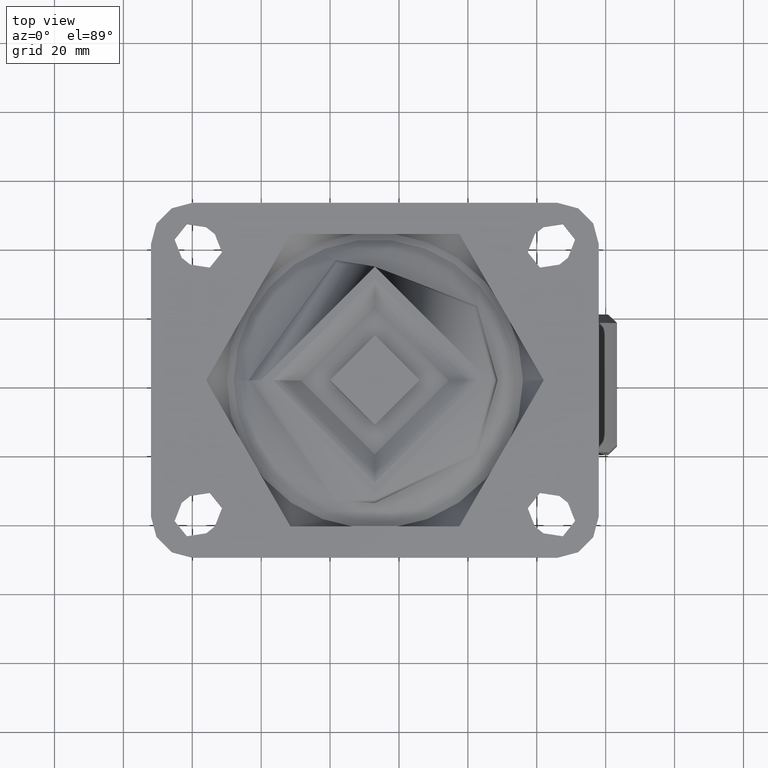
[diagram: clean part render]
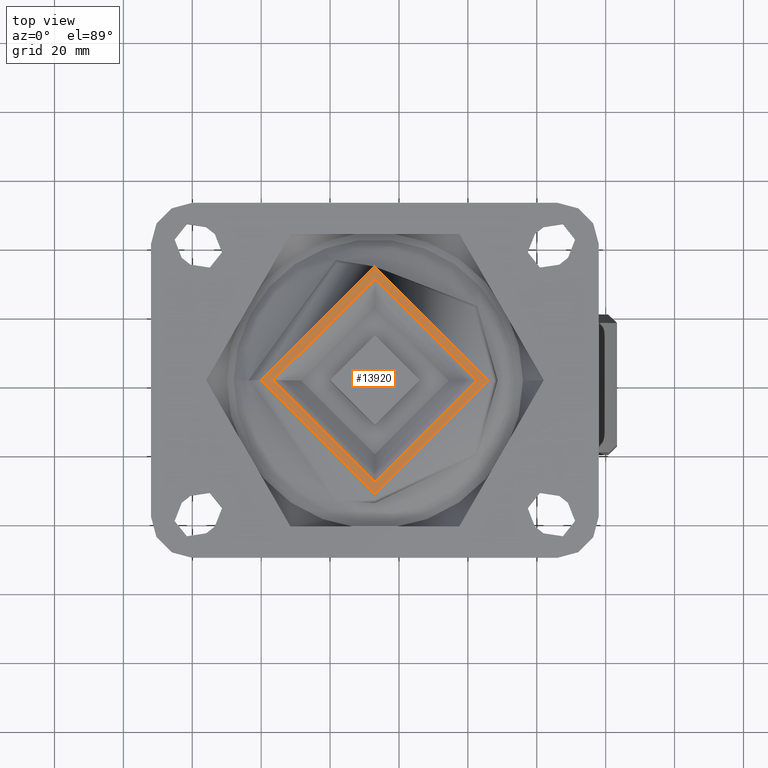
[diagram: same view with one face highlighted and labeled with its STEP entity id]
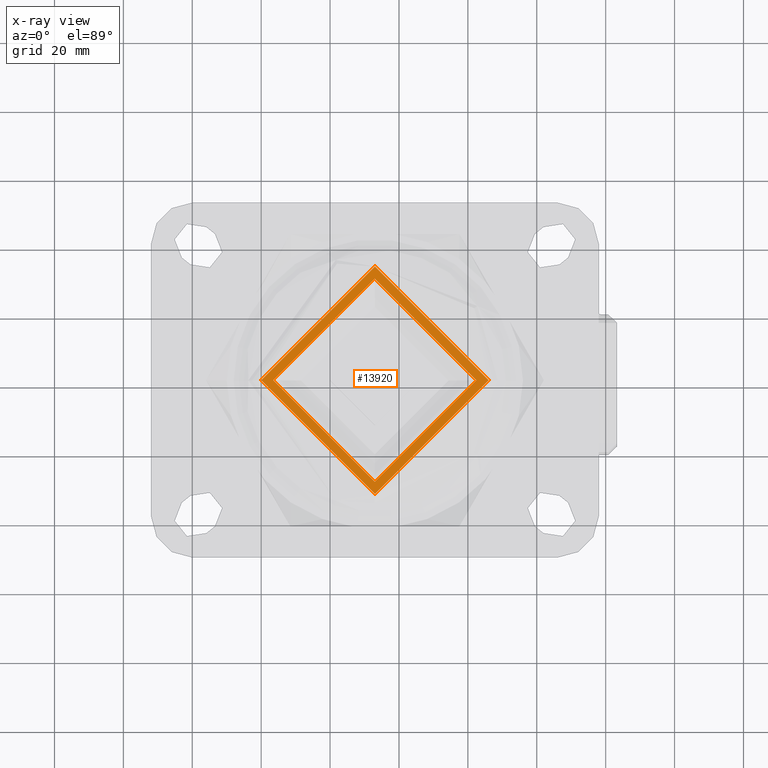
[diagram: x-ray of the same camera — body ghosted, the highlighted face saturated]
A machine part, top view. The second image highlights one B-rep face of the part: STEP entity #13920.
The next image is the same camera in x-ray: the body ghosted, the highlighted face saturated — about 0% of this face is hidden behind the body in this view.
In plain terms, the highlighted planar face has unit normal (0, -0, -1).
Its self-contained STEP definition (entity closure, byte-faithful):
#1147=FACE_BOUND('',#3132,.T.);
#1441=PLANE('',#15077);
#2279=FACE_OUTER_BOUND('',#3131,.T.);
#3131=EDGE_LOOP('',(#12264));
#3132=EDGE_LOOP('',(#12265));
#5754=CIRCLE('',#15052,33.0049928774785);
#5755=CIRCLE('',#15054,29.4950071225217);
#6880=VERTEX_POINT('',#25632);
#6881=VERTEX_POINT('',#25636);
#8716=EDGE_CURVE('',#6880,#6880,#5754,.T.);
#8717=EDGE_CURVE('',#6881,#6881,#5755,.T.);
#12264=ORIENTED_EDGE('',*,*,#8716,.T.);
#12265=ORIENTED_EDGE('',*,*,#8717,.F.);
#13920=ADVANCED_FACE('',(#2279,#1147),#1441,.F.);
#15052=AXIS2_PLACEMENT_3D('',#25634,#17662,#17663);
#15054=AXIS2_PLACEMENT_3D('',#25637,#17666,#17667);
#15077=AXIS2_PLACEMENT_3D('',#25735,#17719,#17720);
#17662=DIRECTION('center_axis',(0.,0.,1.));
#17663=DIRECTION('ref_axis',(-1.,0.,0.));
#17666=DIRECTION('center_axis',(0.,0.,1.));
#17667=DIRECTION('ref_axis',(-1.,0.,0.));
#17719=DIRECTION('center_axis',(0.,0.,-1.));
#17720=DIRECTION('ref_axis',(0.,-1.,0.));
#25632=CARTESIAN_POINT('',(-48.0917010629325,195.278189306354,-1.));
#25634=CARTESIAN_POINT('Origin',(-81.096693940411,195.278189306354,-1.));
#25636=CARTESIAN_POINT('',(-51.6016868178893,195.278189306354,-0.999999999999932));
#25637=CARTESIAN_POINT('Origin',(-81.096693940411,195.278189306354,-0.999999999999932));
#25735=CARTESIAN_POINT('Origin',(-110.591701062932,195.278189306354,-0.999999999999966));